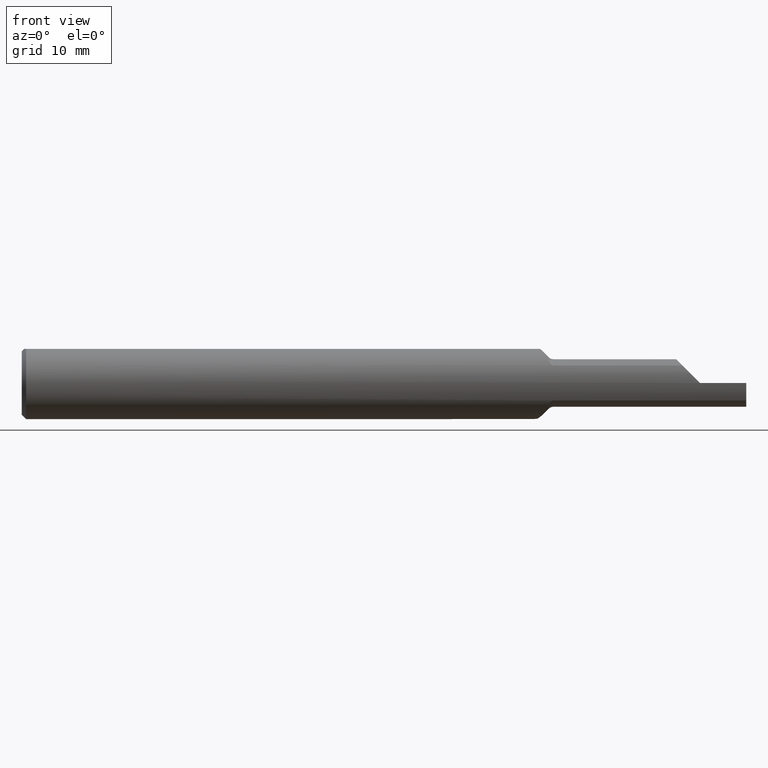
[diagram: clean part render]
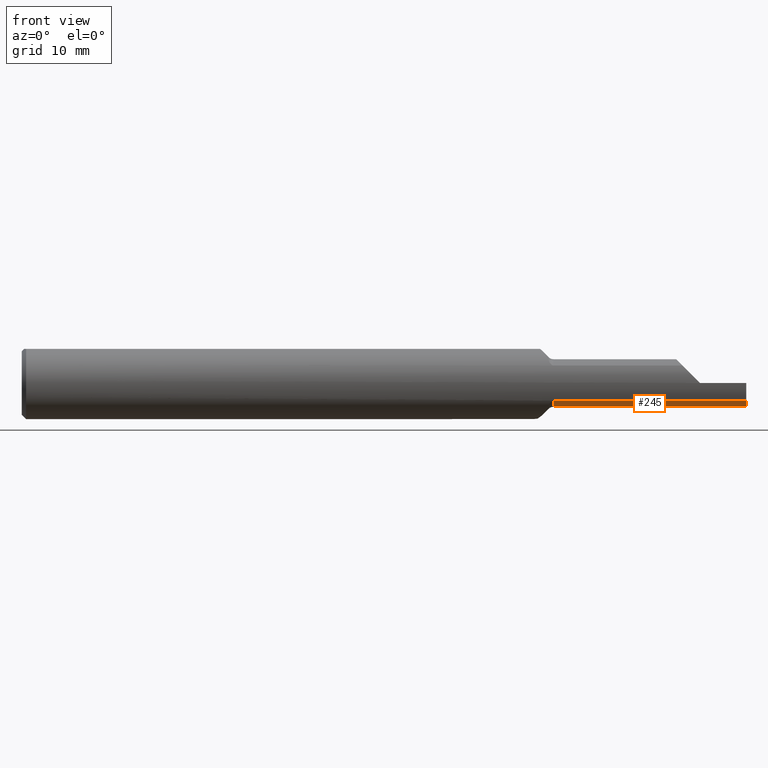
[diagram: same view with one face highlighted and labeled with its STEP entity id]
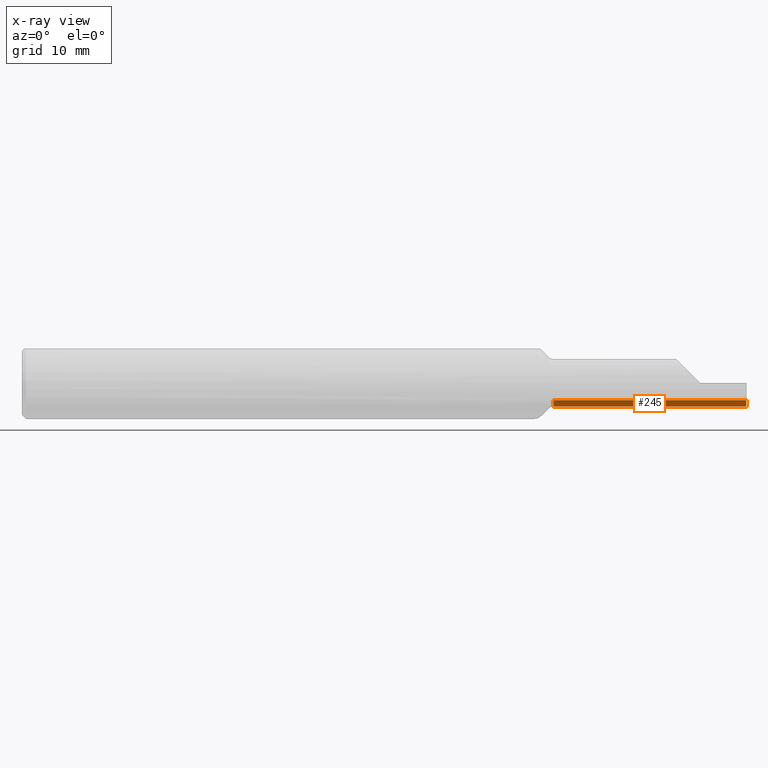
[diagram: x-ray of the same camera — body ghosted, the highlighted face saturated]
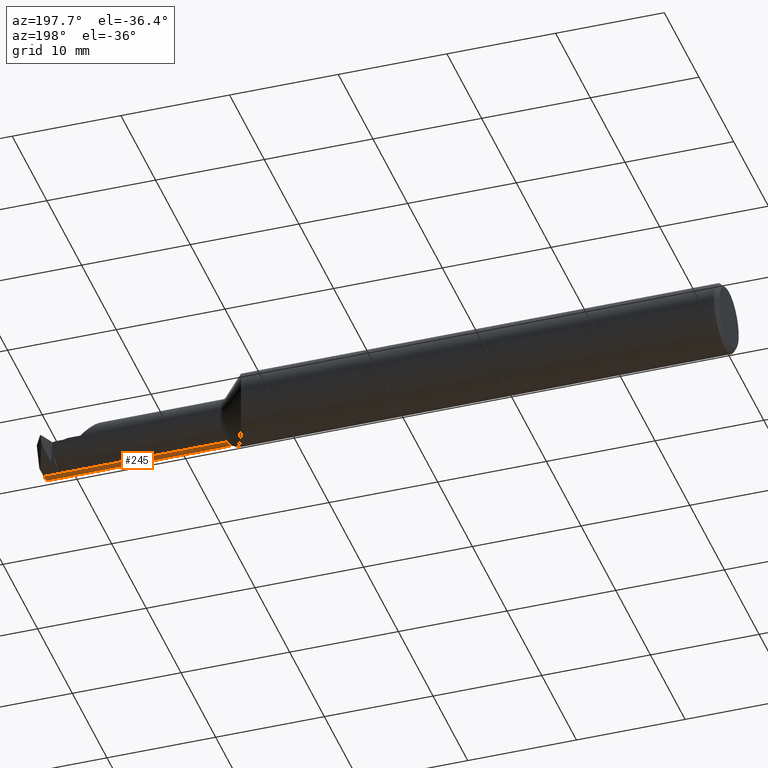
[diagram: same view with one face highlighted and labeled with its STEP entity id]
A machine part, front view. The second image highlights one B-rep face of the part: STEP entity #245.
The next image is the same camera in x-ray: the body ghosted, the highlighted face saturated — about 0% of this face is hidden behind the body in this view.
A second angle (auxiliary view) of the same face is appended — the face is thin or edge-on in the first view.
In plain terms, the highlighted cylindrical surface (edge-blend (fillet) strip) has radius 2.0828 mm, axis along (-1, -0, -0).
Its self-contained STEP definition (entity closure, byte-faithful):
#11 = DIRECTION ( 'NONE',  ( -1.000000000000000000, -0.000000000000000000, -0.000000000000000000 ) ) ;
#17 = VERTEX_POINT ( 'NONE', #134 ) ;
#23 = LINE ( 'NONE', #807, #429 ) ;
#57 = CARTESIAN_POINT ( 'NONE',  ( 1.824999999999999956, -0.05384999999999988407, -0.08200000000000000344 ) ) ;
#62 = CIRCLE ( 'NONE', #700, 0.08200000000000000344 ) ;
#64 = FACE_OUTER_BOUND ( 'NONE', #297, .T. ) ;
#66 = CARTESIAN_POINT ( 'NONE',  ( 2.500000000000000000, -0.05384999999999989101, 0.000000000000000000 ) ) ;
#78 = AXIS2_PLACEMENT_3D ( 'NONE', #606, #847, #998 ) ;
#88 = EDGE_CURVE ( 'NONE', #341, #384, #984, .T. ) ;
#107 = LINE ( 'NONE', #731, #745 ) ;
#111 = VECTOR ( 'NONE', #212, 39.37007874015748143 ) ;
#134 = CARTESIAN_POINT ( 'NONE',  ( 2.500000000000000000, -0.1092232590529248343, -0.06047976671464327242 ) ) ;
#212 = DIRECTION ( 'NONE',  ( -1.000000000000000000, -0.000000000000000000, -0.000000000000000000 ) ) ;
#237 = ORIENTED_EDGE ( 'NONE', *, *, #676, .T. ) ;
#245 = ADVANCED_FACE ( 'NONE', ( #64 ), #679, .T. ) ;
#271 = DIRECTION ( 'NONE',  ( 0.000000000000000000, 0.000000000000000000, 1.000000000000000000 ) ) ;
#275 = ORIENTED_EDGE ( 'NONE', *, *, #569, .T. ) ;
#297 = EDGE_LOOP ( 'NONE', ( #635, #682, #323, #237, #275 ) ) ;
#323 = ORIENTED_EDGE ( 'NONE', *, *, #899, .F. ) ;
#341 = VERTEX_POINT ( 'NONE', #861 ) ;
#344 = AXIS2_PLACEMENT_3D ( 'NONE', #66, #629, #803 ) ;
#384 = VERTEX_POINT ( 'NONE', #706 ) ;
#429 = VECTOR ( 'NONE', #770, 39.37007874015748143 ) ;
#467 = VERTEX_POINT ( 'NONE', #710 ) ;
#569 = EDGE_CURVE ( 'NONE', #467, #384, #62, .T. ) ;
#587 = VERTEX_POINT ( 'NONE', #900 ) ;
#606 = CARTESIAN_POINT ( 'NONE',  ( 1.824999999999999956, -0.05384999999999989101, 0.000000000000000000 ) ) ;
#629 = DIRECTION ( 'NONE',  ( 1.000000000000000000, -0.000000000000000000, -0.000000000000000000 ) ) ;
#635 = ORIENTED_EDGE ( 'NONE', *, *, #88, .F. ) ;
#636 = EDGE_CURVE ( 'NONE', #587, #341, #107, .T. ) ;
#656 = DIRECTION ( 'NONE',  ( 1.000000000000000000, 0.000000000000000000, 0.000000000000000000 ) ) ;
#676 = EDGE_CURVE ( 'NONE', #17, #467, #23, .T. ) ;
#679 = CYLINDRICAL_SURFACE ( 'NONE', #78, 0.08200000000000000344 ) ;
#682 = ORIENTED_EDGE ( 'NONE', *, *, #636, .F. ) ;
#692 = CIRCLE ( 'NONE', #344, 0.08200000000000000344 ) ;
#700 = AXIS2_PLACEMENT_3D ( 'NONE', #890, #656, #271 ) ;
#706 = CARTESIAN_POINT ( 'NONE',  ( 1.835355339059327129, -0.05384999999999988407, -0.08200000000000000344 ) ) ;
#710 = CARTESIAN_POINT ( 'NONE',  ( 1.835355339059327129, -0.1092232590529249175, -0.06047976671464317527 ) ) ;
#731 = CARTESIAN_POINT ( 'NONE',  ( 2.500000000000000000, -0.05384999999999989795, -0.08200000000000000344 ) ) ;
#745 = VECTOR ( 'NONE', #11, 39.37007874015748143 ) ;
#770 = DIRECTION ( 'NONE',  ( -1.000000000000000000, -0.000000000000000000, -0.000000000000000000 ) ) ;
#803 = DIRECTION ( 'NONE',  ( 0.000000000000000000, 0.000000000000000000, 1.000000000000000000 ) ) ;
#807 = CARTESIAN_POINT ( 'NONE',  ( 2.132500000000000284, -0.1092232590529249175, -0.06047976671464317527 ) ) ;
#847 = DIRECTION ( 'NONE',  ( -1.000000000000000000, -0.000000000000000000, -0.000000000000000000 ) ) ;
#861 = CARTESIAN_POINT ( 'NONE',  ( 2.440000000000000391, -0.05384999999999989795, -0.08200000000000000344 ) ) ;
#890 = CARTESIAN_POINT ( 'NONE',  ( 1.835355339059327129, -0.05384999999999989101, 0.000000000000000000 ) ) ;
#899 = EDGE_CURVE ( 'NONE', #17, #587, #692, .T. ) ;
#900 = CARTESIAN_POINT ( 'NONE',  ( 2.500000000000000000, -0.05384999999999989795, -0.08200000000000000344 ) ) ;
#984 = LINE ( 'NONE', #57, #111 ) ;
#998 = DIRECTION ( 'NONE',  ( 0.000000000000000000, 0.000000000000000000, 1.000000000000000000 ) ) ;